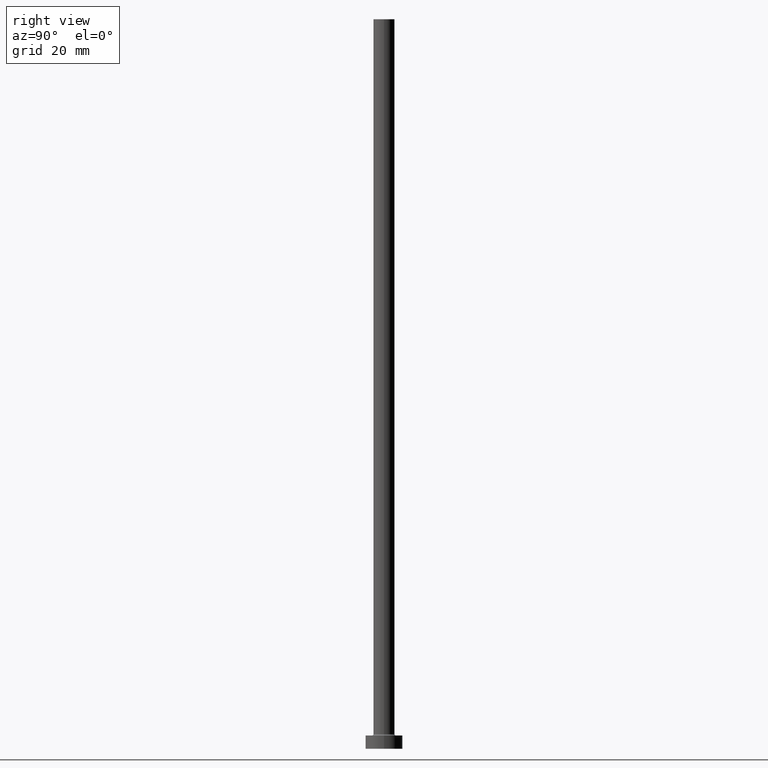
[diagram: clean part render]
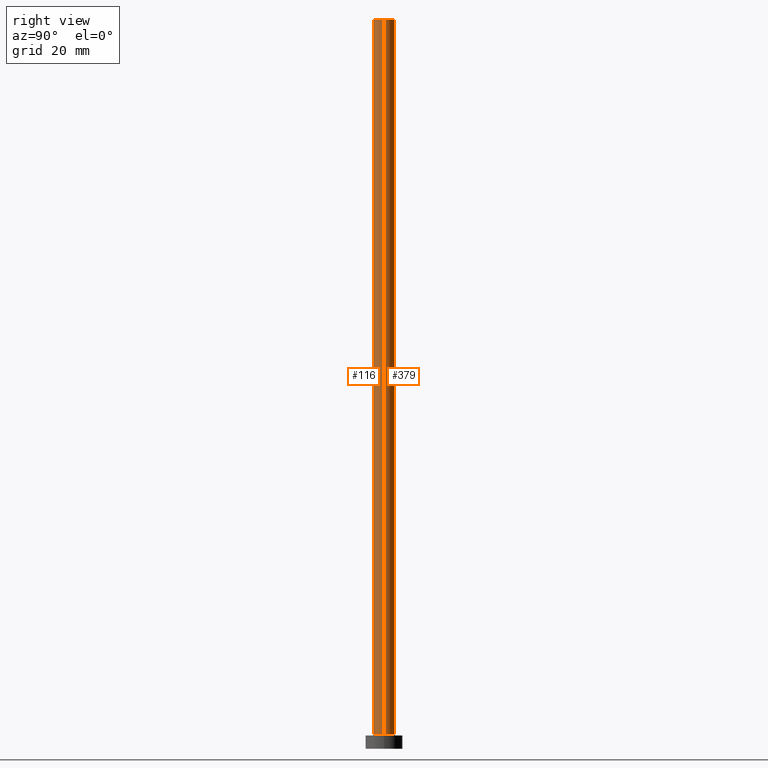
[diagram: same view with one multi-face feature highlighted, each face labeled with its STEP entity id]
A machine part, right view. The highlighted faces form ONE feature: a constant-radius fillet chain: 2 tangent blend faces with common blend radius 4 mm. The faces share edges in the B-rep.
Their STEP definitions:
[1] entity #116 (Cylinder):
#31 = DIRECTION ( 'NONE',  ( -1.000000000000000000, 0.000000000000000000, 0.000000000000000000 ) ) ;
#39 = VERTEX_POINT ( 'NONE', #137 ) ;
#40 = EDGE_CURVE ( 'NONE', #167, #39, #428, .T. ) ;
#51 = ORIENTED_EDGE ( 'NONE', *, *, #293, .F. ) ;
#52 = CARTESIAN_POINT ( 'NONE',  ( -4.000000000000000000, 0.000000000000000000, 5.500000000000005329 ) ) ;
#60 = CARTESIAN_POINT ( 'NONE',  ( 0.000000000000000000, 0.000000000000000000, 275.0000000000000000 ) ) ;
#63 = DIRECTION ( 'NONE',  ( -0.000000000000000000, -0.000000000000000000, -1.000000000000000000 ) ) ;
#66 = ORIENTED_EDGE ( 'NONE', *, *, #40, .F. ) ;
#76 = CIRCLE ( 'NONE', #136, 4.000000000000000000 ) ;
#93 = DIRECTION ( 'NONE',  ( 0.000000000000000000, 0.000000000000000000, 1.000000000000000000 ) ) ;
#98 = CARTESIAN_POINT ( 'NONE',  ( -4.000000000000000000, 0.000000000000000000, 275.0000000000000000 ) ) ;
#114 = VECTOR ( 'NONE', #308, 1000.000000000000000 ) ;
#116 = ADVANCED_FACE ( 'NONE', ( #341 ), #351, .T. ) ;
#134 = CARTESIAN_POINT ( 'NONE',  ( 0.000000000000000000, 0.000000000000000000, 275.0000000000000000 ) ) ;
#136 = AXIS2_PLACEMENT_3D ( 'NONE', #367, #329, #227 ) ;
#137 = CARTESIAN_POINT ( 'NONE',  ( 4.000000000000000000, 4.898587196589412829E-16, 5.500000000000005329 ) ) ;
#166 = CARTESIAN_POINT ( 'NONE',  ( 4.000000000000000000, 4.898587196589412829E-16, 275.0000000000000000 ) ) ;
#167 = VERTEX_POINT ( 'NONE', #166 ) ;
#168 = AXIS2_PLACEMENT_3D ( 'NONE', #60, #93, #391 ) ;
#182 = ORIENTED_EDGE ( 'NONE', *, *, #366, .T. ) ;
#185 = CIRCLE ( 'NONE', #168, 4.000000000000000000 ) ;
#227 = DIRECTION ( 'NONE',  ( 1.000000000000000000, 0.000000000000000000, 0.000000000000000000 ) ) ;
#239 = CARTESIAN_POINT ( 'NONE',  ( 4.000000000000000000, 4.898587196589412829E-16, 275.0000000000000000 ) ) ;
#245 = DIRECTION ( 'NONE',  ( -0.000000000000000000, -0.000000000000000000, -1.000000000000000000 ) ) ;
#272 = ORIENTED_EDGE ( 'NONE', *, *, #339, .T. ) ;
#293 = EDGE_CURVE ( 'NONE', #411, #167, #185, .T. ) ;
#308 = DIRECTION ( 'NONE',  ( -0.000000000000000000, -0.000000000000000000, -1.000000000000000000 ) ) ;
#326 = VECTOR ( 'NONE', #245, 1000.000000000000000 ) ;
#329 = DIRECTION ( 'NONE',  ( 0.000000000000000000, 0.000000000000000000, 1.000000000000000000 ) ) ;
#339 = EDGE_CURVE ( 'NONE', #411, #425, #424, .T. ) ;
#341 = FACE_OUTER_BOUND ( 'NONE', #370, .T. ) ;
#351 = CYLINDRICAL_SURFACE ( 'NONE', #459, 4.000000000000000000 ) ;
#366 = EDGE_CURVE ( 'NONE', #425, #39, #76, .T. ) ;
#367 = CARTESIAN_POINT ( 'NONE',  ( 0.000000000000000000, 0.000000000000000000, 5.500000000000005329 ) ) ;
#370 = EDGE_LOOP ( 'NONE', ( #66, #51, #272, #182 ) ) ;
#377 = CARTESIAN_POINT ( 'NONE',  ( -4.000000000000000000, 0.000000000000000000, 275.0000000000000000 ) ) ;
#391 = DIRECTION ( 'NONE',  ( 1.000000000000000000, 0.000000000000000000, 0.000000000000000000 ) ) ;
#411 = VERTEX_POINT ( 'NONE', #377 ) ;
#424 = LINE ( 'NONE', #98, #114 ) ;
#425 = VERTEX_POINT ( 'NONE', #52 ) ;
#428 = LINE ( 'NONE', #239, #326 ) ;
#459 = AXIS2_PLACEMENT_3D ( 'NONE', #134, #63, #31 ) ;
[2] entity #379 (Cylinder):
#10 = AXIS2_PLACEMENT_3D ( 'NONE', #327, #81, #257 ) ;
#39 = VERTEX_POINT ( 'NONE', #137 ) ;
#40 = EDGE_CURVE ( 'NONE', #167, #39, #428, .T. ) ;
#48 = AXIS2_PLACEMENT_3D ( 'NONE', #453, #347, #164 ) ;
#52 = CARTESIAN_POINT ( 'NONE',  ( -4.000000000000000000, 0.000000000000000000, 5.500000000000005329 ) ) ;
#54 = ORIENTED_EDGE ( 'NONE', *, *, #339, .F. ) ;
#73 = FACE_OUTER_BOUND ( 'NONE', #143, .T. ) ;
#81 = DIRECTION ( 'NONE',  ( -0.000000000000000000, -0.000000000000000000, -1.000000000000000000 ) ) ;
#98 = CARTESIAN_POINT ( 'NONE',  ( -4.000000000000000000, 0.000000000000000000, 275.0000000000000000 ) ) ;
#101 = ORIENTED_EDGE ( 'NONE', *, *, #40, .T. ) ;
#114 = VECTOR ( 'NONE', #308, 1000.000000000000000 ) ;
#137 = CARTESIAN_POINT ( 'NONE',  ( 4.000000000000000000, 4.898587196589412829E-16, 5.500000000000005329 ) ) ;
#143 = EDGE_LOOP ( 'NONE', ( #307, #101, #389, #54 ) ) ;
#147 = CYLINDRICAL_SURFACE ( 'NONE', #10, 4.000000000000000000 ) ;
#153 = EDGE_CURVE ( 'NONE', #39, #425, #418, .T. ) ;
#164 = DIRECTION ( 'NONE',  ( 1.000000000000000000, 0.000000000000000000, 0.000000000000000000 ) ) ;
#166 = CARTESIAN_POINT ( 'NONE',  ( 4.000000000000000000, 4.898587196589412829E-16, 275.0000000000000000 ) ) ;
#167 = VERTEX_POINT ( 'NONE', #166 ) ;
#184 = AXIS2_PLACEMENT_3D ( 'NONE', #275, #235, #317 ) ;
#189 = CIRCLE ( 'NONE', #48, 4.000000000000000000 ) ;
#235 = DIRECTION ( 'NONE',  ( 0.000000000000000000, 0.000000000000000000, 1.000000000000000000 ) ) ;
#239 = CARTESIAN_POINT ( 'NONE',  ( 4.000000000000000000, 4.898587196589412829E-16, 275.0000000000000000 ) ) ;
#245 = DIRECTION ( 'NONE',  ( -0.000000000000000000, -0.000000000000000000, -1.000000000000000000 ) ) ;
#257 = DIRECTION ( 'NONE',  ( -1.000000000000000000, 0.000000000000000000, 0.000000000000000000 ) ) ;
#275 = CARTESIAN_POINT ( 'NONE',  ( 0.000000000000000000, 0.000000000000000000, 5.500000000000005329 ) ) ;
#307 = ORIENTED_EDGE ( 'NONE', *, *, #331, .F. ) ;
#308 = DIRECTION ( 'NONE',  ( -0.000000000000000000, -0.000000000000000000, -1.000000000000000000 ) ) ;
#317 = DIRECTION ( 'NONE',  ( 1.000000000000000000, 0.000000000000000000, 0.000000000000000000 ) ) ;
#326 = VECTOR ( 'NONE', #245, 1000.000000000000000 ) ;
#327 = CARTESIAN_POINT ( 'NONE',  ( 0.000000000000000000, 0.000000000000000000, 275.0000000000000000 ) ) ;
#331 = EDGE_CURVE ( 'NONE', #167, #411, #189, .T. ) ;
#339 = EDGE_CURVE ( 'NONE', #411, #425, #424, .T. ) ;
#347 = DIRECTION ( 'NONE',  ( 0.000000000000000000, 0.000000000000000000, 1.000000000000000000 ) ) ;
#377 = CARTESIAN_POINT ( 'NONE',  ( -4.000000000000000000, 0.000000000000000000, 275.0000000000000000 ) ) ;
#379 = ADVANCED_FACE ( 'NONE', ( #73 ), #147, .T. ) ;
#389 = ORIENTED_EDGE ( 'NONE', *, *, #153, .T. ) ;
#411 = VERTEX_POINT ( 'NONE', #377 ) ;
#418 = CIRCLE ( 'NONE', #184, 4.000000000000000000 ) ;
#424 = LINE ( 'NONE', #98, #114 ) ;
#425 = VERTEX_POINT ( 'NONE', #52 ) ;
#428 = LINE ( 'NONE', #239, #326 ) ;
#453 = CARTESIAN_POINT ( 'NONE',  ( 0.000000000000000000, 0.000000000000000000, 275.0000000000000000 ) ) ;